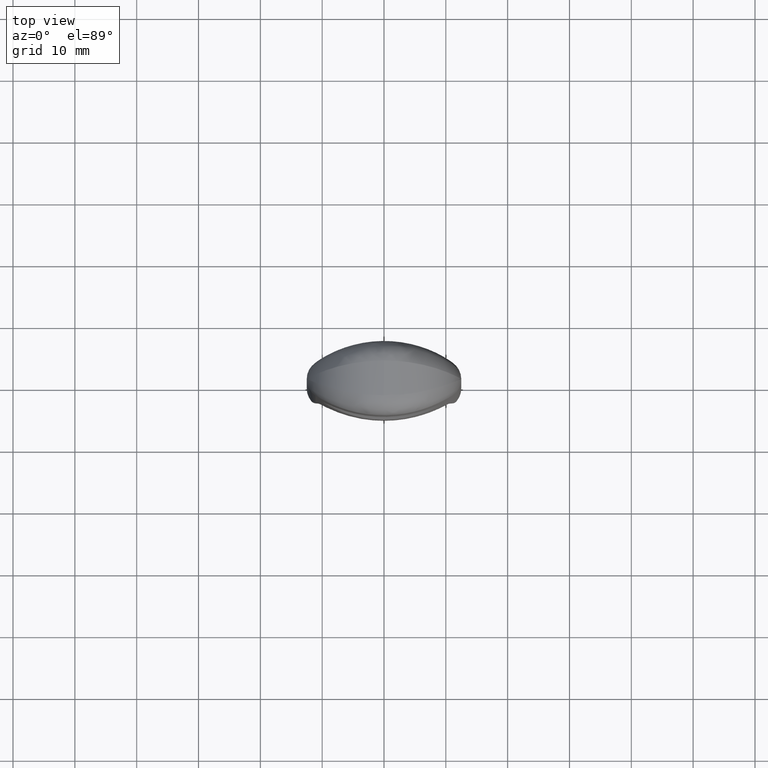
[diagram: clean part render]
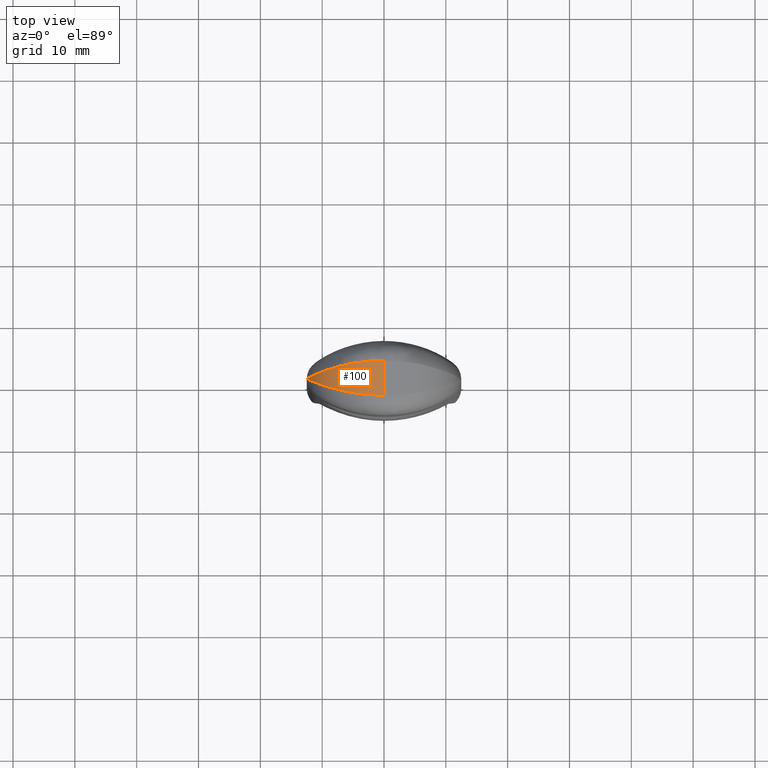
[diagram: same view with one face highlighted and labeled with its STEP entity id]
A machine part, top view. The second image highlights one B-rep face of the part: STEP entity #100.
In plain terms, the highlighted cylindrical surface (partial cylindrical patch) has radius 12.5 mm, axis along (0, -1, 0).
Its self-contained STEP definition (entity closure, byte-faithful):
#100=ADVANCED_FACE('NONE',(#235),#236,.T.);
#235=FACE_OUTER_BOUND('',#724,.T.);
#236=CYLINDRICAL_SURFACE('',#725,12.5);
#724=EDGE_LOOP('',(#2085,#2086,#2087));
#725=AXIS2_PLACEMENT_3D('',#2088,#2089,#2090);
#2085=ORIENTED_EDGE('',*,*,#2440,.T.);
#2086=ORIENTED_EDGE('',*,*,#2441,.T.);
#2087=ORIENTED_EDGE('',*,*,#2442,.T.);
#2088=CARTESIAN_POINT('',(0.0,-8.0,-12.5));
#2089=DIRECTION('',(0.0,-1.0,0.0));
#2090=DIRECTION('',(0.0,0.0,1.0));
#2440=EDGE_CURVE('NONE',#2570,#2640,#2641,.T.);
#2441=EDGE_CURVE('NONE',#2640,#2642,#2643,.T.);
#2442=EDGE_CURVE('NONE',#2642,#2570,#2644,.T.);
#2570=VERTEX_POINT('NONE',#2890);
#2640=VERTEX_POINT('NONE',#3185);
#2641=B_SPLINE_CURVE_WITH_KNOTS('',3,(#3186,#3187,#3188,#3189,#3190,#3191,#3192,#3193,#3194,#3195,#3196,#3197,#3198,#3199,#3200,#3201,#3202,#3203,#3204,#3205,#3206,#3207,#3208,#3209,#3210,#3211),.UNSPECIFIED.,.F.,.F.,(4,2,2,2,2,2,2,2,2,2,2,2,4),(5.50161760662122E-018,0.00247325496763233,0.00370988245144849,0.00494650993526466,0.00741976490289698,0.00865639238671314,0.00989301987052928,0.0111296473543455,0.0123662748381616,0.0148395298057939,0.0160761572896101,0.0173127847734262,0.0197860397410586),.UNSPECIFIED.);
#2642=VERTEX_POINT('NONE',#3212);
#2643=LINE('',#3213,#3214);
#2644=B_SPLINE_CURVE_WITH_KNOTS('',3,(#3215,#3216,#3217,#3218,#3219,#3220,#3221,#3222,#3223,#3224,#3225,#3226,#3227,#3228,#3229,#3230,#3231,#3232,#3233,#3234,#3235,#3236,#3237,#3238,#3239,#3240),.UNSPECIFIED.,.F.,.F.,(4,2,2,2,2,2,2,2,2,2,2,2,4),(0.0197860397410586,0.021020671858098,0.0222553039751374,0.0234899360921769,0.0247245682092163,0.0271938324432952,0.0284284645603346,0.0296630966773741,0.032132360911453,0.0333669930284924,0.0346016251455318,0.0370708893796107,0.0395401536136896),.UNSPECIFIED.);
#2890=CARTESIAN_POINT('',(-12.5,0.0,-12.5));
#3185=CARTESIAN_POINT('',(-3.55082222120991E-012,-2.80893142036678,-4.09622530904424E-016));
#3186=CARTESIAN_POINT('',(-12.5,0.0,-12.5));
#3187=CARTESIAN_POINT('',(-12.5,-5.88518491752288E-015,-11.6626659766315));
#3188=CARTESIAN_POINT('',(-12.4167438163012,-0.0417096311885057,-10.8418765127654));
#3189=CARTESIAN_POINT('',(-12.1738817411403,-0.158462396349906,-9.63376056872866));
#3190=CARTESIAN_POINT('',(-12.0731068863402,-0.206392177408659,-9.23492381346142));
#3191=CARTESIAN_POINT('',(-11.8312059215608,-0.318672884344765,-8.44497856546697));
#3192=CARTESIAN_POINT('',(-11.6904889753263,-0.382802876904685,-8.0559850578219));
#3193=CARTESIAN_POINT('',(-11.2179550595577,-0.591659452391733,-6.92553236300911));
#3194=CARTESIAN_POINT('',(-10.8339634217629,-0.7538578045937,-6.21219767213494));
#3195=CARTESIAN_POINT('',(-10.1545125216255,-1.01555071762408,-5.19923422970231));
#3196=CARTESIAN_POINT('',(-9.90995369320173,-1.10607076819686,-4.87066384275329));
#3197=CARTESIAN_POINT('',(-9.39542508554648,-1.28708521886404,-4.24530800916481));
#3198=CARTESIAN_POINT('',(-9.12441521976252,-1.37800348204707,-3.94680195889798));
#3199=CARTESIAN_POINT('',(-8.55499825765523,-1.55823364436026,-3.37727263125432));
#3200=CARTESIAN_POINT('',(-8.256591421158,-1.64755101379605,-3.10625081176909));
#3201=CARTESIAN_POINT('',(-7.63158787459571,-1.82231589327538,-2.59178662827387));
#3202=CARTESIAN_POINT('',(-7.30344751019806,-1.90813489316782,-2.34732990057878));
#3203=CARTESIAN_POINT('',(-6.28519590014621,-2.15375031482482,-1.66420121890477));
#3204=CARTESIAN_POINT('',(-5.57014420391242,-2.29983430826674,-1.28004576127746));
#3205=CARTESIAN_POINT('',(-4.44240970739743,-2.48309046160075,-0.80893649472073));
#3206=CARTESIAN_POINT('',(-4.05724265751737,-2.53820175420955,-0.669557358212105));
#3207=CARTESIAN_POINT('',(-3.2674394417513,-2.63478524339037,-0.427534196482478));
#3208=CARTESIAN_POINT('',(-2.86212680454134,-2.67618886365596,-0.325070823339704));
#3209=CARTESIAN_POINT('',(-1.64693804261609,-2.77515422122761,-0.081454340718605));
#3210=CARTESIAN_POINT('',(-0.827952517134398,-2.80893142036668,-2.347881215017E-013));
#3211=CARTESIAN_POINT('',(-3.55082222120991E-012,-2.80893142036678,-4.09622530904424E-016));
#3212=CARTESIAN_POINT('',(3.55082222120991E-012,2.80893142036678,-4.09622530904424E-016));
#3213=CARTESIAN_POINT('',(0.0,-8.0,0.0));
#3214=VECTOR('',#4129,1000.0);
#3215=CARTESIAN_POINT('',(3.55082222120991E-012,2.80893142036678,-4.09622530904424E-016));
#3216=CARTESIAN_POINT('',(-0.413308284993841,2.80893142036683,1.17672075787093E-013));
#3217=CARTESIAN_POINT('',(-0.831400849590791,2.80036901171727,-0.0207539788876427));
#3218=CARTESIAN_POINT('',(-1.65867163741398,2.76638086905301,-0.103564341820375));
#3219=CARTESIAN_POINT('',(-2.06681969176899,2.74112687122532,-0.165205603277632));
#3220=CARTESIAN_POINT('',(-2.87255766366623,2.67516608020174,-0.327600527561954));
#3221=CARTESIAN_POINT('',(-3.2701465541511,2.63445653892948,-0.428357496196248));
#3222=CARTESIAN_POINT('',(-4.05488388556027,2.53848785975932,-0.668840804896114));
#3223=CARTESIAN_POINT('',(-4.44320507518781,2.48303228999298,-0.809063881967086));
#3224=CARTESIAN_POINT('',(-5.58452597557486,2.2973536265097,-1.28646780659483));
#3225=CARTESIAN_POINT('',(-6.29929968903059,2.15053869935606,-1.6729679726913));
#3226=CARTESIAN_POINT('',(-7.30755575989421,1.90704714086536,-2.35043948788006));
#3227=CARTESIAN_POINT('',(-7.6329047177364,1.821990068344,-2.59268706779979));
#3228=CARTESIAN_POINT('',(-8.26202011739792,1.6459901790354,-3.11090486008922));
#3229=CARTESIAN_POINT('',(-8.56254797110862,1.55593539860486,-3.38433426350523));
#3230=CARTESIAN_POINT('',(-9.41708608708865,1.28518168698358,-4.2405298029156));
#3231=CARTESIAN_POINT('',(-9.92762882017001,1.10290313937119,-4.86130424188412));
#3232=CARTESIAN_POINT('',(-10.6053805042701,0.841913557836247,-5.87125380794533));
#3233=CARTESIAN_POINT('',(-10.8172502696627,0.756679562549936,-6.22285945184944));
#3234=CARTESIAN_POINT('',(-11.2023977657068,0.596653667017583,-6.93927332476757));
#3235=CARTESIAN_POINT('',(-11.3767026943026,0.521494418943382,-7.30530026149843));
#3236=CARTESIAN_POINT('',(-11.8456289622034,0.314231576413588,-8.42714439725988));
#3237=CARTESIAN_POINT('',(-12.0869011775545,0.200248231481828,-9.20646392589976));
#3238=CARTESIAN_POINT('',(-12.4165145045715,0.0418482586161758,-10.8354497589036));
#3239=CARTESIAN_POINT('',(-12.5,3.73202716560245E-015,-11.6637734110109));
#3240=CARTESIAN_POINT('',(-12.5,0.0,-12.5));
#4129=DIRECTION('',(-0.0,1.0,-0.0));